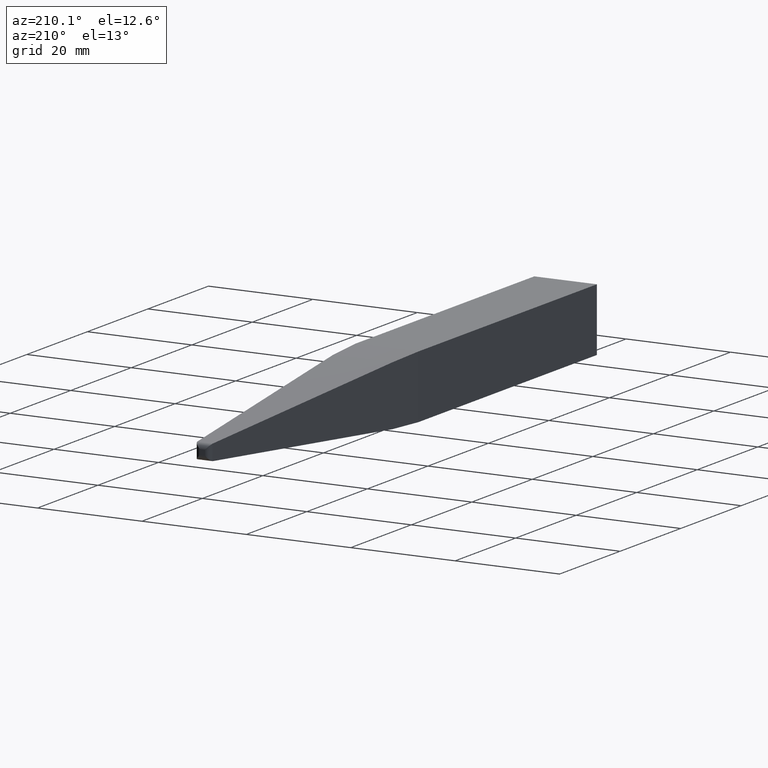
[diagram: clean part render]
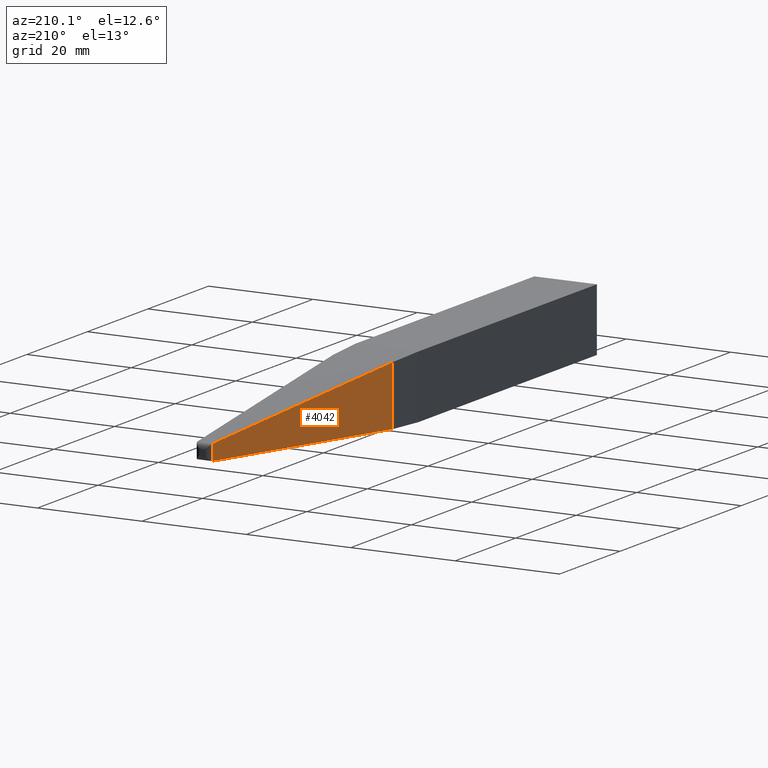
[diagram: same view with one face highlighted and labeled with its STEP entity id]
A machine part, auxiliary view. The second image highlights one B-rep face of the part: STEP entity #4042.
In plain terms, the highlighted planar face has unit normal (0.9968, -0.08, 0).
Its self-contained STEP definition (entity closure, byte-faithful):
#454 = CARTESIAN_POINT ( 'NONE',  ( -5.679439276511700996, 66.99387130903453169, -5.999999999999904077 ) ) ;
#657 = VECTOR ( 'NONE', #4873, 1000.000000000000000 ) ;
#801 = AXIS2_PLACEMENT_3D ( 'NONE', #5904, #5170, #10141 ) ;
#832 = EDGE_CURVE ( 'NONE', #4151, #992, #2889, .T. ) ;
#901 = VECTOR ( 'NONE', #5977, 999.9999999999998863 ) ;
#992 = VERTEX_POINT ( 'NONE', #2524 ) ;
#1553 = VECTOR ( 'NONE', #9154, 1000.000000000000000 ) ;
#1727 = EDGE_CURVE ( 'NONE', #10297, #4151, #8538, .T. ) ;
#2524 = CARTESIAN_POINT ( 'NONE',  ( -5.679439276511690338, 66.99387130903467380, 5.679439276511691226 ) ) ;
#2767 = EDGE_LOOP ( 'NONE', ( #4298, #3518, #10441, #3645 ) ) ;
#2889 = LINE ( 'NONE', #454, #657 ) ;
#3125 = LINE ( 'NONE', #3150, #1553 ) ;
#3150 = CARTESIAN_POINT ( 'NONE',  ( -1.498841634460736483, 119.0800058657350888, -1.424999999999999600 ) ) ;
#3222 = CARTESIAN_POINT ( 'NONE',  ( -1.498841634460736927, 119.0800058657350888, 1.498841634460736483 ) ) ;
#3241 = DIRECTION ( 'NONE',  ( -0.07975103215001323742, -0.9936194169509849905, -0.07975103215001326518 ) ) ;
#3518 = ORIENTED_EDGE ( 'NONE', *, *, #832, .T. ) ;
#3645 = ORIENTED_EDGE ( 'NONE', *, *, #5276, .T. ) ;
#4042 = ADVANCED_FACE ( 'NONE', ( #7010 ), #8553, .F. ) ;
#4134 = CARTESIAN_POINT ( 'NONE',  ( -1.454098039115140351, 119.6374670536474270, -1.454098039115139906 ) ) ;
#4151 = VERTEX_POINT ( 'NONE', #6695 ) ;
#4298 = ORIENTED_EDGE ( 'NONE', *, *, #1727, .T. ) ;
#4873 = DIRECTION ( 'NONE',  ( 1.445602896647339410E-16, 1.801079018773734508E-15, 1.000000000000000000 ) ) ;
#5170 = DIRECTION ( 'NONE',  ( 0.9967943927651168323, -0.08000586573509489707, 0.000000000000000000 ) ) ;
#5276 = EDGE_CURVE ( 'NONE', #7433, #10297, #3125, .T. ) ;
#5412 = EDGE_CURVE ( 'NONE', #992, #7433, #7013, .T. ) ;
#5904 = CARTESIAN_POINT ( 'NONE',  ( -1.425000000000000044, 120.0000000000000000, -6.000000000000000000 ) ) ;
#5977 = DIRECTION ( 'NONE',  ( 0.07975103215001323742, 0.9936194169509849905, -0.07975103215001326518 ) ) ;
#6695 = CARTESIAN_POINT ( 'NONE',  ( -5.679439276511701884, 66.99387130903450327, -5.679439276511703660 ) ) ;
#7010 = FACE_OUTER_BOUND ( 'NONE', #2767, .T. ) ;
#7013 = LINE ( 'NONE', #10145, #901 ) ;
#7301 = VECTOR ( 'NONE', #3241, 999.9999999999998863 ) ;
#7433 = VERTEX_POINT ( 'NONE', #3222 ) ;
#8538 = LINE ( 'NONE', #4134, #7301 ) ;
#8553 = PLANE ( 'NONE',  #801 ) ;
#9154 = DIRECTION ( 'NONE',  ( -0.000000000000000000, -0.000000000000000000, -1.000000000000000000 ) ) ;
#9861 = CARTESIAN_POINT ( 'NONE',  ( -1.498841634460736705, 119.0800058657350888, -1.498841634460736261 ) ) ;
#10141 = DIRECTION ( 'NONE',  ( 0.08000586573509489707, 0.9967943927651168323, 0.000000000000000000 ) ) ;
#10145 = CARTESIAN_POINT ( 'NONE',  ( -1.377775313567231041, 120.5883731424410570, 1.377775313567230597 ) ) ;
#10297 = VERTEX_POINT ( 'NONE', #9861 ) ;
#10441 = ORIENTED_EDGE ( 'NONE', *, *, #5412, .T. ) ;